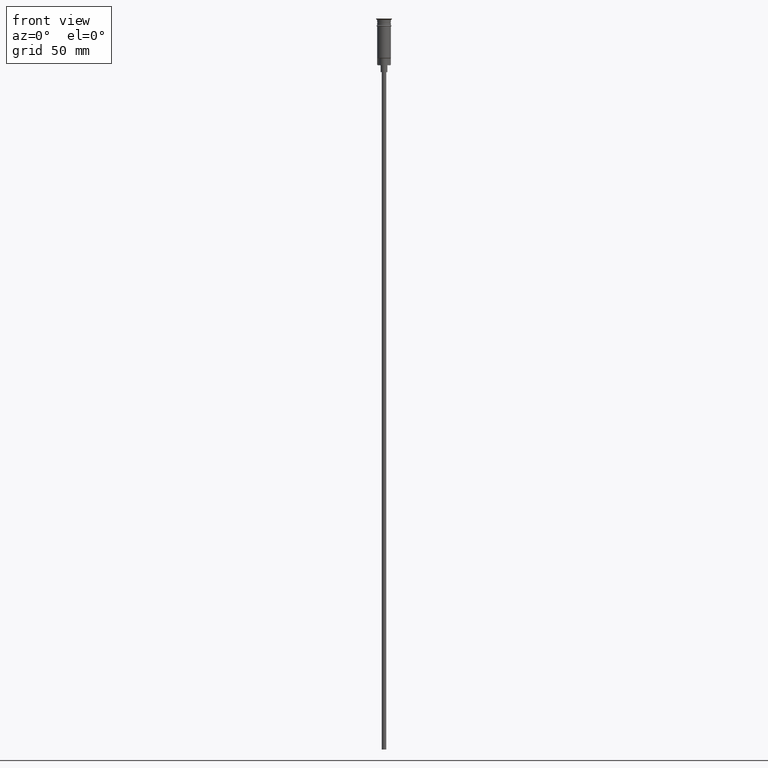
[diagram: clean part render]
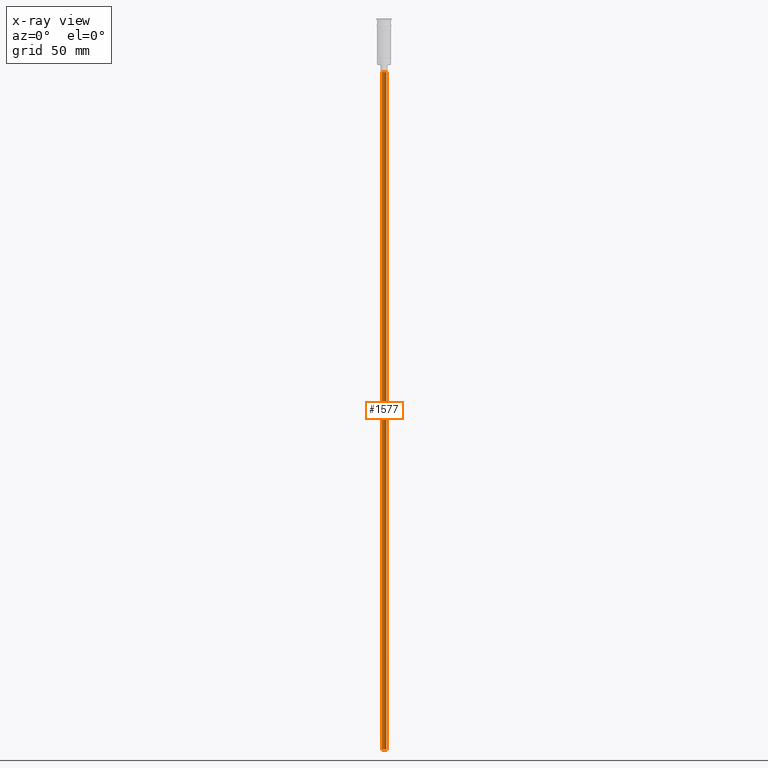
[diagram: x-ray — body ghosted, one internal face saturated and labeled with its STEP entity id]
A machine part, front view, then the same camera in x-ray: the body is ghosted and one INTERNAL B-rep face — a face not visible from any outside direction — is saturated and labeled: STEP entity #1577.
In plain terms, the highlighted cylindrical surface (edge-blend (fillet) strip) has radius 1 mm, axis along (-0, -0, 1).
Its self-contained STEP definition (entity closure, byte-faithful):
#7 = VECTOR ( 'NONE', #1057, 1000.000000000000000 ) ;
#113 = ORIENTED_EDGE ( 'NONE', *, *, #859, .T. ) ;
#132 = VERTEX_POINT ( 'NONE', #932 ) ;
#233 = EDGE_CURVE ( 'NONE', #132, #514, #940, .T. ) ;
#279 = CARTESIAN_POINT ( 'NONE',  ( -0.9999999999999997780, 1.224646799147352961E-16, -23.50000000000000000 ) ) ;
#289 = EDGE_LOOP ( 'NONE', ( #809, #1302, #113, #389 ) ) ;
#302 = AXIS2_PLACEMENT_3D ( 'NONE', #1457, #850, #1339 ) ;
#309 = FACE_OUTER_BOUND ( 'NONE', #289, .T. ) ;
#389 = ORIENTED_EDGE ( 'NONE', *, *, #755, .F. ) ;
#419 = CYLINDRICAL_SURFACE ( 'NONE', #803, 0.9999999999999997780 ) ;
#514 = VERTEX_POINT ( 'NONE', #279 ) ;
#530 = DIRECTION ( 'NONE',  ( -0.000000000000000000, -0.000000000000000000, 1.000000000000000000 ) ) ;
#565 = DIRECTION ( 'NONE',  ( -0.000000000000000000, -0.000000000000000000, 1.000000000000000000 ) ) ;
#569 = LINE ( 'NONE', #1553, #7 ) ;
#635 = AXIS2_PLACEMENT_3D ( 'NONE', #1370, #1225, #1595 ) ;
#653 = VERTEX_POINT ( 'NONE', #1427 ) ;
#654 = CARTESIAN_POINT ( 'NONE',  ( -0.9999999999999997780, 1.224646799147352961E-16, -320.5000000000000000 ) ) ;
#684 = CARTESIAN_POINT ( 'NONE',  ( 0.000000000000000000, 0.000000000000000000, -320.5000000000000000 ) ) ;
#755 = EDGE_CURVE ( 'NONE', #1152, #653, #569, .T. ) ;
#803 = AXIS2_PLACEMENT_3D ( 'NONE', #684, #565, #825 ) ;
#809 = ORIENTED_EDGE ( 'NONE', *, *, #1375, .F. ) ;
#825 = DIRECTION ( 'NONE',  ( 1.000000000000000000, 0.000000000000000000, 0.000000000000000000 ) ) ;
#850 = DIRECTION ( 'NONE',  ( 0.000000000000000000, 0.000000000000000000, -1.000000000000000000 ) ) ;
#859 = EDGE_CURVE ( 'NONE', #514, #653, #1002, .T. ) ;
#932 = CARTESIAN_POINT ( 'NONE',  ( -0.9999999999999997780, 1.224646799147352961E-16, -320.5000000000000000 ) ) ;
#940 = LINE ( 'NONE', #654, #1156 ) ;
#1002 = CIRCLE ( 'NONE', #635, 0.9999999999999997780 ) ;
#1033 = CIRCLE ( 'NONE', #302, 0.9999999999999997780 ) ;
#1057 = DIRECTION ( 'NONE',  ( -0.000000000000000000, -0.000000000000000000, 1.000000000000000000 ) ) ;
#1152 = VERTEX_POINT ( 'NONE', #1304 ) ;
#1156 = VECTOR ( 'NONE', #530, 1000.000000000000000 ) ;
#1225 = DIRECTION ( 'NONE',  ( 0.000000000000000000, 0.000000000000000000, -1.000000000000000000 ) ) ;
#1302 = ORIENTED_EDGE ( 'NONE', *, *, #233, .T. ) ;
#1304 = CARTESIAN_POINT ( 'NONE',  ( 0.9999999999999997780, 0.000000000000000000, -320.5000000000000000 ) ) ;
#1339 = DIRECTION ( 'NONE',  ( -1.000000000000000000, 0.000000000000000000, 0.000000000000000000 ) ) ;
#1370 = CARTESIAN_POINT ( 'NONE',  ( 0.000000000000000000, 0.000000000000000000, -23.50000000000000000 ) ) ;
#1375 = EDGE_CURVE ( 'NONE', #132, #1152, #1033, .T. ) ;
#1427 = CARTESIAN_POINT ( 'NONE',  ( 0.9999999999999997780, 0.000000000000000000, -23.50000000000000000 ) ) ;
#1457 = CARTESIAN_POINT ( 'NONE',  ( 0.000000000000000000, 0.000000000000000000, -320.5000000000000000 ) ) ;
#1553 = CARTESIAN_POINT ( 'NONE',  ( 0.9999999999999997780, 0.000000000000000000, -320.5000000000000000 ) ) ;
#1577 = ADVANCED_FACE ( 'NONE', ( #309 ), #419, .T. ) ;
#1595 = DIRECTION ( 'NONE',  ( -1.000000000000000000, 0.000000000000000000, 0.000000000000000000 ) ) ;